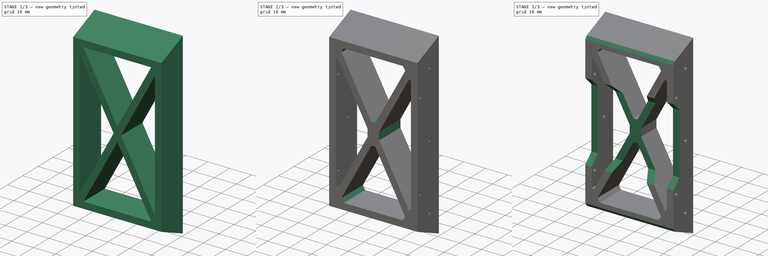
[diagram: build sequence overview — one tinted view per stage of 3, left to right]
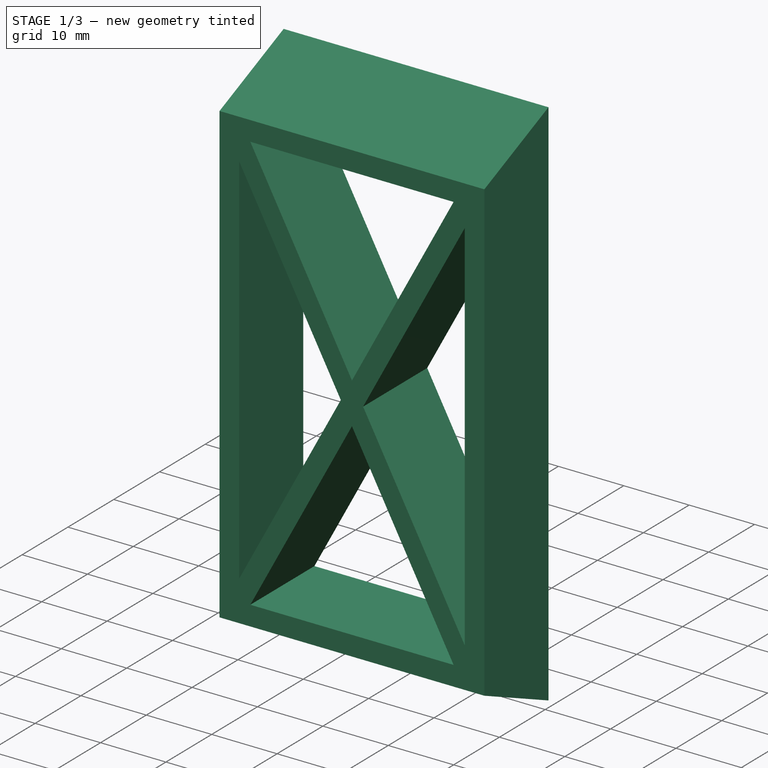
[diagram: stage 1 of 3 — iso view after this stage's code; geometry added in this stage tinted green]
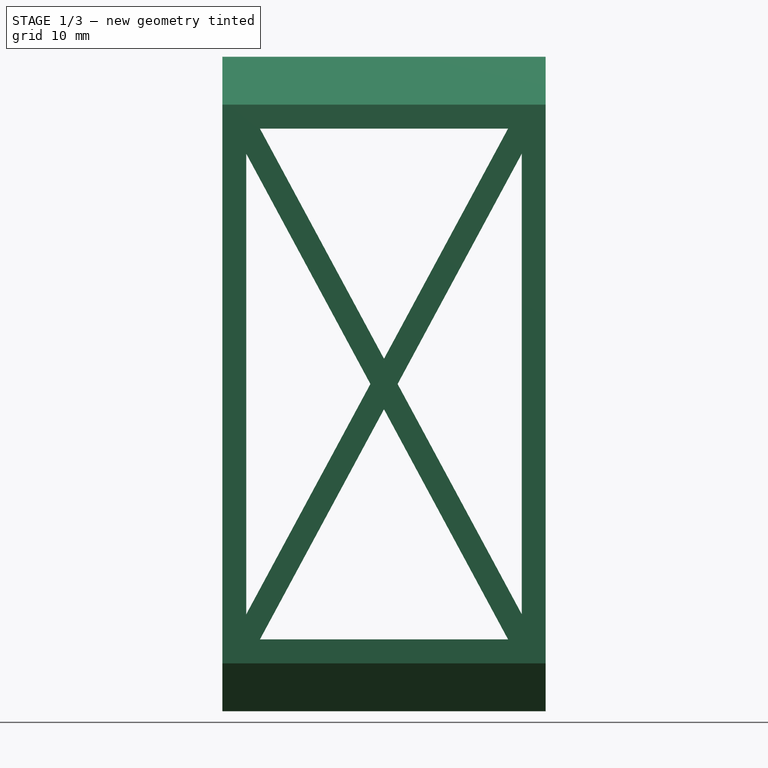
[diagram: stage 1 of 3 — front view after this stage's code; geometry added in this stage tinted green]
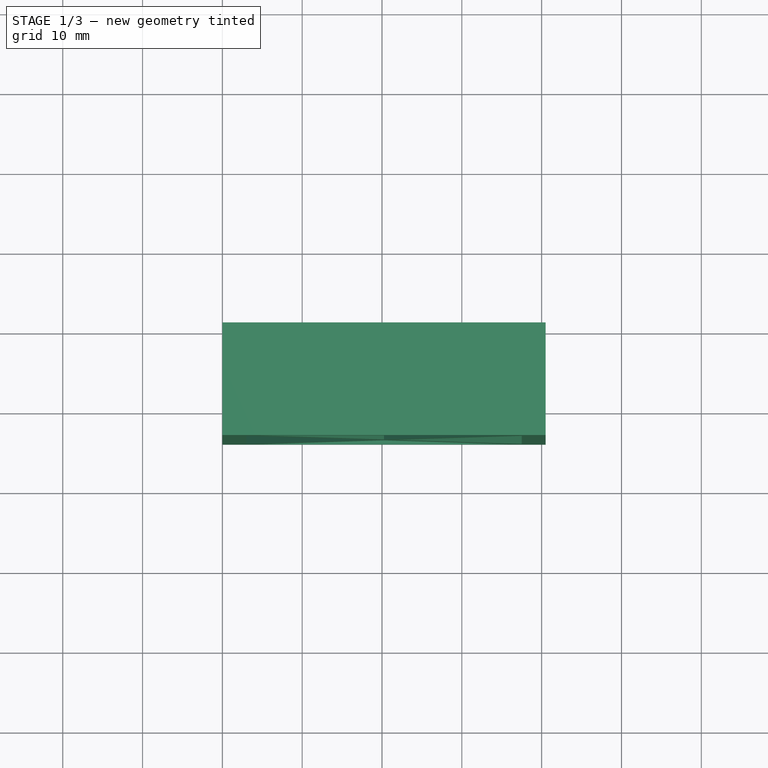
[diagram: stage 1 of 3 — top view after this stage's code; geometry added in this stage tinted green]
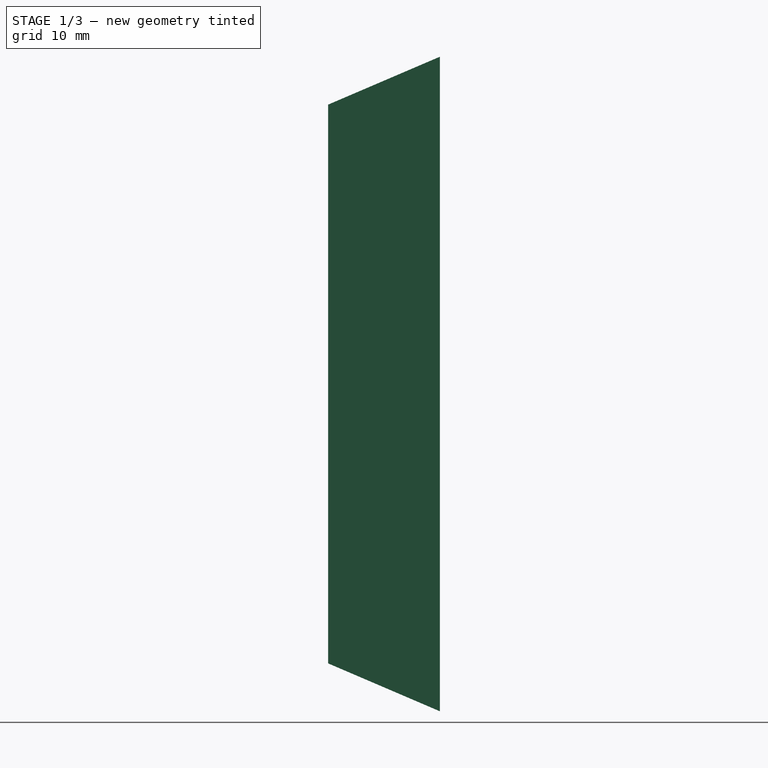
[diagram: stage 1 of 3 — right view after this stage's code; geometry added in this stage tinted green]
FCSTD DOCUMENT  (FreeCAD 0.21R33668 +26 (Git))
Label: Leg_frame_rear
License: All rights reserved
LicenseURL: https://en.wikipedia.org/wiki/All_rights_reserved
objects: Sketcher::SketchObject×5, PartDesign::Pocket×4, PartDesign::Chamfer×2, PartDesign::Pad×1, PartDesign::Body×1
note: 20 computed .brp shape members not serialized (recipe doc carries the construction recipe); baked Part::Feature solids carry a one-line shape summary decoded from their .brp

FEATURE [Sketcher::SketchObject] Sketch
  FullyConstrained = true
  MapMode = 5
  Placement = pos=(0,0,0) rot=(0.57735,0.57735,0.57735;2.0944rad)
  Support = -> [YZ_Plane]
  sketch-geometry (7):
    g0: LineSegment StartX=10 StartY=9 StartZ=0 EndX=10 EndY=91 EndZ=0
    g1: Circle CenterX=0 CenterY=100 CenterZ=0 NormalX=0 NormalY=0 NormalZ=1 AngleXU=0 Radius=10
    g2: Circle CenterX=0 CenterY=0 CenterZ=0 NormalX=0 NormalY=0 NormalZ=1 AngleXU=0 Radius=10
    g3: LineSegment StartX=-4 StartY=85 StartZ=0 EndX=-4 EndY=15 EndZ=0
    g4: LineSegment StartX=-4 StartY=15 StartZ=0 EndX=10 EndY=9 EndZ=0
    g5: LineSegment StartX=-4 StartY=85 StartZ=0 EndX=10 EndY=91 EndZ=0
    g6: LineSegment StartX=-4 StartY=50 StartZ=0 EndX=10 EndY=50 EndZ=0
  constraints (19):
    c: Vertical(g0)
    c: Equal(g1,g2)
    c: Diameter(g2) = 20
    c: DistanceY(g2,g1) = 100
    c: Coincident(g2,g-1)
    c: DistanceX(g3,g0) = 14
    c: Coincident(g4,g3)
    c: Coincident(g4,g0)
    c: Coincident(g5,g3)
    c: Coincident(g0,g5)
    c: Vertical(g3)
    c: DistanceY(g4,g4) = 6
    c: DistanceY(g3,g3) = 70
    c: DistanceY(g5,g5) = 6
    c: PointOnObject(g6,g3)
    c: PointOnObject(g6,g0)
    c: Symmetric(g3,g3,g6)
    c: Symmetric(g1,g2,g6)
    c: DistanceX(g2,g0) = 10
FEATURE [PartDesign::Pad] Pad
  Direction = (1,-2e-16,3e-16)
  Length = 40.5
  Length2 = 10
  Placement = pos=(0,0,0) rot=(0.57735,0.57735,0.57735;2.0944rad)
  Profile = -> Sketch
  ReferenceAxis = -> Sketch [N_Axis]
  Type = 0
FEATURE [Sketcher::SketchObject] Sketch001
  ExternalGeometry = -> [Pad]
  FullyConstrained = true
  MapMode = 5
  Placement = pos=(-1.8e-15,-4,9e-16) rot=(-0.57735,-0.57735,0.57735;4.18879rad)
  Support = -> [Pad]
  sketch-geometry (22):
    g0: LineSegment StartX=-82 StartY=37.5 StartZ=0 EndX=-18 EndY=37.5 EndZ=0
    g1: LineSegment StartX=-18 StartY=37.5 StartZ=0 EndX=-18 EndY=3 EndZ=0
    g2: LineSegment StartX=-18 StartY=3 StartZ=0 EndX=-82 EndY=3 EndZ=0
    g3: LineSegment StartX=-82 StartY=3 StartZ=0 EndX=-82 EndY=37.5 EndZ=0
    g4: LineSegment StartX=-82 StartY=37.5 StartZ=0 EndX=-18 EndY=3 EndZ=0
    g5: LineSegment StartX=-82 StartY=3 StartZ=0 EndX=-18 EndY=37.5 EndZ=0
    g6: LineSegment StartX=-78.8388 StartY=37.5 StartZ=0 EndX=-21.1612 EndY=37.5 EndZ=0
    g7: LineSegment StartX=-21.1612 StartY=37.5 StartZ=0 EndX=-50 EndY=21.9541 EndZ=0
    g8: LineSegment StartX=-78.8388 StartY=37.5 StartZ=0 EndX=-50 EndY=21.9541 EndZ=0
    g9: LineSegment StartX=-82 StartY=35.7959 StartZ=0 EndX=-53.1612 EndY=20.25 EndZ=0
    g10: LineSegment StartX=-53.1612 StartY=20.25 StartZ=0 EndX=-82 EndY=4.70406 EndZ=0
    g11: LineSegment StartX=-82 StartY=4.70406 StartZ=0 EndX=-82 EndY=35.7959 EndZ=0
    g12: LineSegment StartX=-21.1612 StartY=3 StartZ=0 EndX=-78.8388 EndY=3 EndZ=0
    g13: LineSegment StartX=-46.8388 StartY=20.25 StartZ=0 EndX=-18 EndY=35.7959 EndZ=0
    g14: LineSegment StartX=-18 StartY=35.7959 StartZ=0 EndX=-18 EndY=4.70406 EndZ=0
    g15: LineSegment StartX=-18 StartY=4.70406 StartZ=0 EndX=-46.8388 EndY=20.25 EndZ=0
    g16: GeomPoint X=-50 Y=20.25 Z=0
    g17: LineSegment StartX=-78.8388 StartY=3 StartZ=0 EndX=-50 EndY=18.5459 EndZ=0
    g18: LineSegment StartX=-50 StartY=18.5459 StartZ=0 EndX=-21.1612 EndY=3 EndZ=0
    g19: LineSegment StartX=-50 StartY=21.9541 StartZ=0 EndX=-50 EndY=18.5459 EndZ=0
    g20: LineSegment StartX=-53.1612 StartY=20.25 StartZ=0 EndX=-46.8388 EndY=20.25 EndZ=0
    g21: LineSegment StartX=-53.1612 StartY=20.25 StartZ=0 EndX=-51.7376 EndY=17.6092 EndZ=0
  constraints (58):
    c: Coincident(g0,g1)
    c: Coincident(g1,g2)
    c: Coincident(g2,g3)
    c: Coincident(g3,g0)
    c: Horizontal(g0)
    c: Horizontal(g2)
    c: Vertical(g3)
    c: DistanceY(g0,g-4) = 3
    c: DistanceY(g-6,g2) = 3
    c: DistanceX(g-4,g0) = 3
    c: DistanceX(g0,g-5) = 3
    c: Coincident(g4,g0)
    c: Coincident(g4,g1)
    c: Coincident(g5,g2)
    c: Coincident(g5,g0)
    c: PointOnObject(g6,g0)
    c: PointOnObject(g6,g0)
    c: Coincident(g7,g6)
    c: Coincident(g8,g6)
    c: Coincident(g8,g7)
    c: PointOnObject(g9,g3)
    c: Coincident(g10,g9)
    c: PointOnObject(g10,g3)
    c: Coincident(g11,g10)
    c: Coincident(g11,g9)
    c: PointOnObject(g12,g2)
    c: PointOnObject(g12,g2)
    c: Coincident(g14,g13)
    c: Coincident(g15,g14)
    c: Coincident(g15,g13)
    c: PointOnObject(g13,g1)
    c: PointOnObject(g14,g1)
    c: Vertical(g1)
    c: Parallel(g8,g9)
    c: Parallel(g15,g4)
    c: Tangent(g7,g10)
    c: Tangent(g15,g8)
    c: PointOnObject(g16,g5)
    c: PointOnObject(g16,g4)
    c: Coincident(g17,g12)
    c: Coincident(g18,g17)
    c: Coincident(g18,g12)
    c: Tangent(g18,g9)
    c: Parallel(g7,g5)
    c: Parallel(g5,g13)
    c: Parallel(g13,g17)
    c: Coincident(g19,g7)
    c: Coincident(g19,g17)
    c: Coincident(g20,g9)
    c: Coincident(g20,g13)
    c: Horizontal(g20)
    c: PointOnObject(g16,g20)
    c: PointOnObject(g16,g19)
    c: Vertical(g19)
    c: Coincident(g21,g9)
    c: PointOnObject(g21,g17)
    c: Perpendicular(g17,g21)
    c: Distance(g21) = 3
FEATURE [PartDesign::Pocket] Pocket
  BaseFeature = -> Pad
  Direction = (4e-16,1,-2e-16)
  Length = 5
  Length2 = 5
  Placement = pos=(0,0,0) rot=(0.57735,0.57735,0.57735;2.0944rad)
  Profile = -> Sketch001
  ReferenceAxis = -> Sketch001 [N_Axis]
  Type = 1
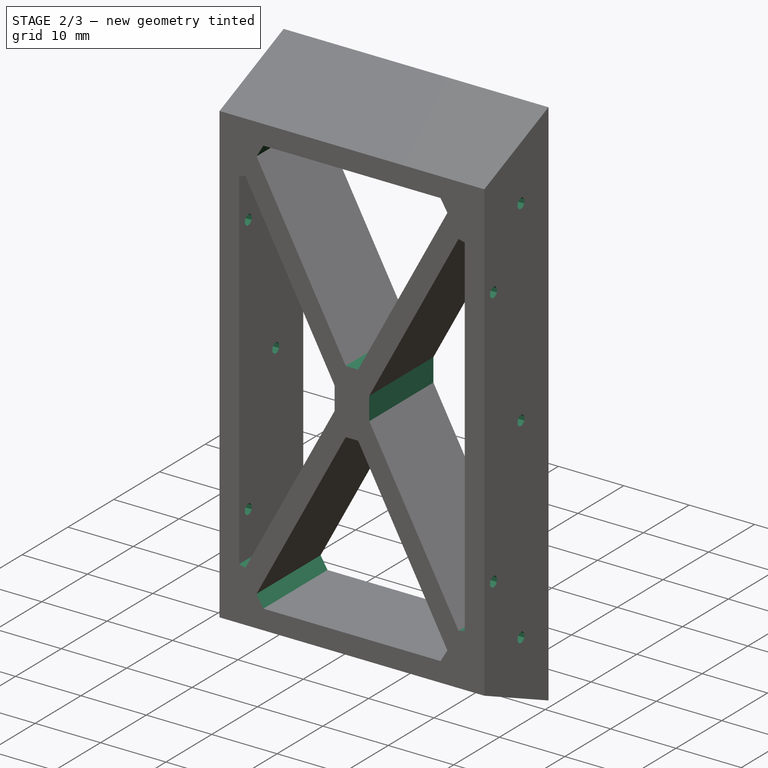
[diagram: stage 2 of 3 — iso view after this stage's code; geometry added in this stage tinted green]
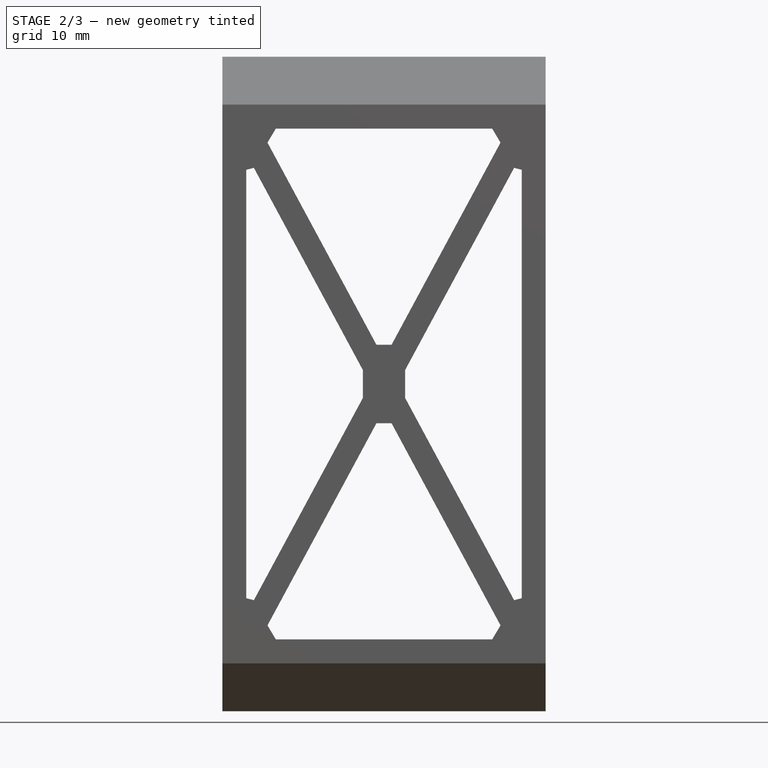
[diagram: stage 2 of 3 — front view after this stage's code; geometry added in this stage tinted green]
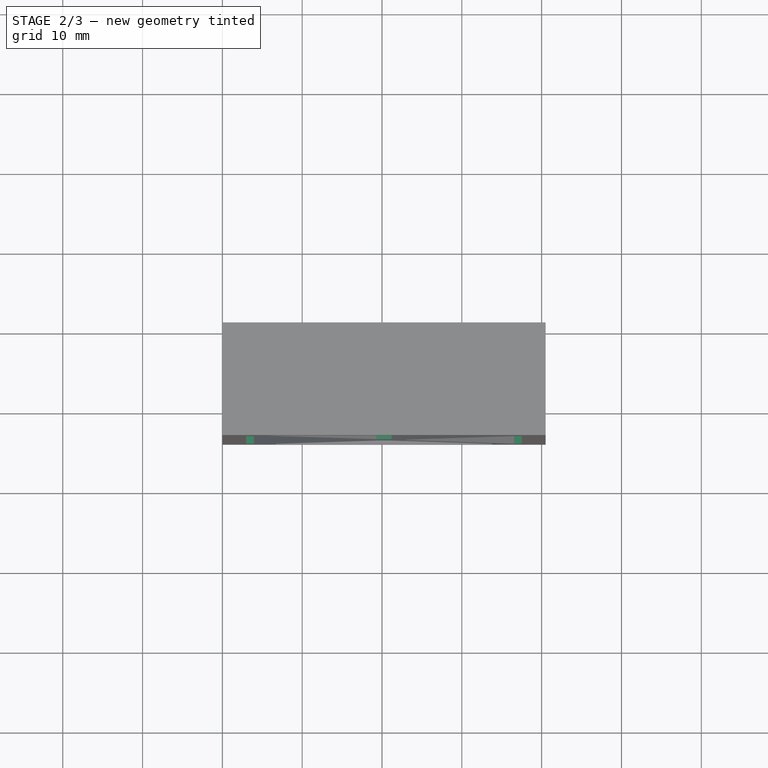
[diagram: stage 2 of 3 — top view after this stage's code; geometry added in this stage tinted green]
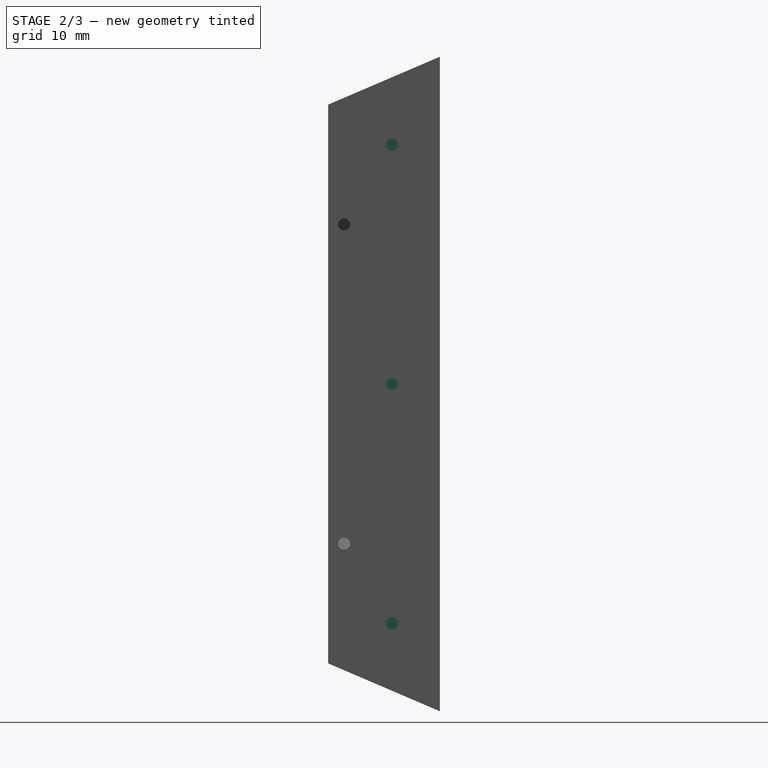
[diagram: stage 2 of 3 — right view after this stage's code; geometry added in this stage tinted green]
FEATURE [PartDesign::Chamfer] Chamfer
  Angle = 45
  Base = -> Pocket [Edge43,Edge46,Edge37,Edge39,Edge27,Edge40,Edge25,Edge28,Edge34,Edge31,Edge33,Edge45]
  BaseFeature = -> Pocket
  ChamferType = 0
  FlipDirection = false
  Placement = pos=(0,0,0) rot=(0.57735,0.57735,0.57735;2.0944rad)
  Size = 2
  Size2 = 1
  SupportTransform = false
  UseAllEdges = false
FEATURE [Sketcher::SketchObject] Sketch002
  ExternalGeometry = -> [Chamfer]
  FullyConstrained = true
  MapMode = 5
  Placement = pos=(40.5,-2.7e-14,1.35e-14) rot=(0.57735,0.57735,0.57735;2.0944rad)
  Support = -> [Chamfer]
  sketch-geometry (49):
    g0: LineSegment StartX=4 StartY=80 StartZ=0 EndX=4 EndY=50 EndZ=0
    g1: LineSegment StartX=4 StartY=50 StartZ=0 EndX=4 EndY=20 EndZ=0
    g2: LineSegment StartX=3.69385 StartY=80.7391 StartZ=0 EndX=3.2609 EndY=80.3061 EndZ=0
    g3: LineSegment StartX=3.2609 StartY=80.3061 StartZ=0 EndX=3.2609 EndY=79.6939 EndZ=0
    g4: LineSegment StartX=3.2609 StartY=79.6939 StartZ=0 EndX=3.69385 EndY=79.2609 EndZ=0
    g5: LineSegment StartX=3.69385 StartY=79.2609 StartZ=0 EndX=4.30615 EndY=79.2609 EndZ=0
    g6: LineSegment StartX=4.30615 StartY=79.2609 StartZ=0 EndX=4.7391 EndY=79.6939 EndZ=0
    g7: LineSegment StartX=4.7391 StartY=79.6939 StartZ=0 EndX=4.7391 EndY=80.3061 EndZ=0
    g8: LineSegment StartX=4.7391 StartY=80.3061 StartZ=0 EndX=4.30615 EndY=80.7391 EndZ=0
    g9: LineSegment StartX=4.30615 StartY=80.7391 StartZ=0 EndX=3.69385 EndY=80.7391 EndZ=0
    g10: Circle CenterX=4 CenterY=80 CenterZ=0 NormalX=0 NormalY=0 NormalZ=1 AngleXU=0 Radius=0.8
    g11: LineSegment StartX=3.69385 StartY=50.7391 StartZ=0 EndX=3.2609 EndY=50.3061 EndZ=0
    g12: LineSegment StartX=3.2609 StartY=50.3061 StartZ=0 EndX=3.2609 EndY=49.6939 EndZ=0
    g13: LineSegment StartX=3.2609 StartY=49.6939 StartZ=0 EndX=3.69385 EndY=49.2609 EndZ=0
    g14: LineSegment StartX=3.69385 StartY=49.2609 StartZ=0 EndX=4.30615 EndY=49.2609 EndZ=0
    g15: LineSegment StartX=4.30615 StartY=49.2609 StartZ=0 EndX=4.7391 EndY=49.6939 EndZ=0
    g16: LineSegment StartX=4.7391 StartY=49.6939 StartZ=0 EndX=4.7391 EndY=50.3061 EndZ=0
    g17: LineSegment StartX=4.7391 StartY=50.3061 StartZ=0 EndX=4.30615 EndY=50.7391 EndZ=0
    g18: LineSegment StartX=4.30615 StartY=50.7391 StartZ=0 EndX=3.69385 EndY=50.7391 EndZ=0
    g19: Circle CenterX=4 CenterY=50 CenterZ=0 NormalX=0 NormalY=0 NormalZ=1 AngleXU=0 Radius=0.8
    g20: LineSegment StartX=3.69385 StartY=20.7391 StartZ=0 EndX=3.2609 EndY=20.3061 EndZ=0
    g21: LineSegment StartX=3.2609 StartY=20.3061 StartZ=0 EndX=3.2609 EndY=19.6939 EndZ=0
    g22: LineSegment StartX=3.2609 StartY=19.6939 StartZ=0 EndX=3.69385 EndY=19.2609 EndZ=0
    g23: LineSegment StartX=3.69385 StartY=19.2609 StartZ=0 EndX=4.30615 EndY=19.2609 EndZ=0
    g24: LineSegment StartX=4.30615 StartY=19.2609 StartZ=0 EndX=4.7391 EndY=19.6939 EndZ=0
    g25: LineSegment StartX=4.7391 StartY=19.6939 StartZ=0 EndX=4.7391 EndY=20.3061 EndZ=0
    g26: LineSegment StartX=4.7391 StartY=20.3061 StartZ=0 EndX=4.30615 EndY=20.7391 EndZ=0
    g27: LineSegment StartX=4.30615 StartY=20.7391 StartZ=0 EndX=3.69385 EndY=20.7391 EndZ=0
    g28: Circle CenterX=4 CenterY=20 CenterZ=0 NormalX=0 NormalY=0 NormalZ=1 AngleXU=0 Radius=0.8
    g29: LineSegment StartX=4 StartY=50 StartZ=0 EndX=10 EndY=50 EndZ=0
    g30: LineSegment StartX=-1.69385 StartY=69.2609 StartZ=0 EndX=-1.2609 EndY=69.6939 EndZ=0
    g31: LineSegment StartX=-1.2609 StartY=69.6939 StartZ=0 EndX=-1.2609 EndY=70.3061 EndZ=0
    g32: LineSegment StartX=-1.2609 StartY=70.3061 StartZ=0 EndX=-1.69385 EndY=70.7391 EndZ=0
    g33: LineSegment StartX=-1.69385 StartY=70.7391 StartZ=0 EndX=-2.30615 EndY=70.7391 EndZ=0
    g34: LineSegment StartX=-2.30615 StartY=70.7391 StartZ=0 EndX=-2.7391 EndY=70.3061 EndZ=0
    g35: LineSegment StartX=-2.7391 StartY=70.3061 StartZ=0 EndX=-2.7391 EndY=69.6939 EndZ=0
    g36: LineSegment StartX=-2.7391 StartY=69.6939 StartZ=0 EndX=-2.30615 EndY=69.2609 EndZ=0
    g37: LineSegment StartX=-2.30615 StartY=69.2609 StartZ=0 EndX=-1.69385 EndY=69.2609 EndZ=0
    g38: Circle CenterX=-2 CenterY=70 CenterZ=0 NormalX=0 NormalY=0 NormalZ=1 AngleXU=0 Radius=0.8
    g39: LineSegment StartX=-1.69385 StartY=29.2609 StartZ=0 EndX=-1.2609 EndY=29.6939 EndZ=0
    g40: LineSegment StartX=-1.2609 StartY=29.6939 StartZ=0 EndX=-1.2609 EndY=30.3061 EndZ=0
    g41: LineSegment StartX=-1.2609 StartY=30.3061 StartZ=0 EndX=-1.69385 EndY=30.7391 EndZ=0
    g42: LineSegment StartX=-1.69385 StartY=30.7391 StartZ=0 EndX=-2.30615 EndY=30.7391 EndZ=0
    g43: LineSegment StartX=-2.30615 StartY=30.7391 StartZ=0 EndX=-2.7391 EndY=30.3061 EndZ=0
    g44: LineSegment StartX=-2.7391 StartY=30.3061 StartZ=0 EndX=-2.7391 EndY=29.6939 EndZ=0
    g45: LineSegment StartX=-2.7391 StartY=29.6939 StartZ=0 EndX=-2.30615 EndY=29.2609 EndZ=0
    g46: LineSegment StartX=-2.30615 StartY=29.2609 StartZ=0 EndX=-1.69385 EndY=29.2609 EndZ=0
    g47: Circle CenterX=-2 CenterY=30 CenterZ=0 NormalX=0 NormalY=0 NormalZ=1 AngleXU=0 Radius=0.8
    g48: LineSegment StartX=-2 StartY=70 StartZ=0 EndX=-2 EndY=30 EndZ=0
  constraints (113):
    c: Vertical(g0)
    c: Coincident(g1,g0)
    c: Vertical(g1)
    c: Equal(g1,g0)
    c: Coincident(g2,g3)
    c: Coincident(g3,g4)
    c: Coincident(g4,g5)
    c: Coincident(g5,g6)
    c: Coincident(g6,g7)
    c: Coincident(g7,g8)
    c: Coincident(g8,g9)
    c: Coincident(g9,g2)
    c: Equal(g2, g3-g9) x7
    c: PointOnObject(g2,g10)
    c: PointOnObject(g3,g10)
    c: PointOnObject(g4,g10)
    c: PointOnObject(g5,g10)
    c: PointOnObject(g6,g10)
    c: PointOnObject(g7,g10)
    c: PointOnObject(g8,g10)
    c: PointOnObject(g9,g10)
    c: Coincident(g10,g0)
    c: Coincident(g11,g12)
    c: Coincident(g12,g13)
    c: Coincident(g13,g14)
    c: Coincident(g14,g15)
    c: Coincident(g15,g16)
    c: Coincident(g16,g17)
    c: Coincident(g17,g18)
    c: Coincident(g18,g11)
    c: Equal(g11, g12-g18) x7
    c: PointOnObject(g11,g19)
    c: PointOnObject(g12,g19)
    c: PointOnObject(g13,g19)
    c: PointOnObject(g14,g19)
    c: PointOnObject(g15,g19)
    c: PointOnObject(g16,g19)
    c: PointOnObject(g17,g19)
    c: PointOnObject(g18,g19)
    c: Coincident(g19,g0)
    c: Coincident(g20,g21)
    c: Coincident(g21,g22)
    c: Coincident(g22,g23)
    c: Coincident(g23,g24)
    c: Coincident(g24,g25)
    c: Coincident(g25,g26)
    c: Coincident(g26,g27)
    c: Coincident(g27,g20)
    c: Equal(g20, g21-g27) x7
    c: PointOnObject(g20,g28)
    c: PointOnObject(g21,g28)
    c: PointOnObject(g22,g28)
    c: PointOnObject(g23,g28)
    c: PointOnObject(g24,g28)
    c: PointOnObject(g25,g28)
    c: PointOnObject(g26,g28)
    c: PointOnObject(g27,g28)
    c: Coincident(g28,g1)
    c: Horizontal(g27)
    c: Horizontal(g18)
    c: Horizontal(g9)
    c: Equal(g10,g19)
    c: Equal(g19,g28)
    c: Diameter(g28) = 1.6
    c: DistanceY(g0,g0) = 30
    c: Coincident(g29,g0)
    c: PointOnObject(g29,g-4)
    c: DistanceX(g29,g29) = 6
    c: Symmetric(g-4,g-4,g29)
    c: Coincident(g30,g31)
    c: Coincident(g31,g32)
    c: Coincident(g32,g33)
    c: Coincident(g33,g34)
    c: Coincident(g34,g35)
    c: Coincident(g35,g36)
    c: Coincident(g36,g37)
    c: Coincident(g37,g30)
    c: Equal(g30, g31-g37) x7
    c: PointOnObject(g30,g38)
    c: PointOnObject(g31,g38)
    c: PointOnObject(g32,g38)
    c: PointOnObject(g33,g38)
    c: PointOnObject(g34,g38)
    c: PointOnObject(g35,g38)
    c: PointOnObject(g36,g38)
    c: PointOnObject(g37,g38)
    c: Coincident(g39,g40)
    c: Coincident(g40,g41)
    c: Coincident(g41,g42)
    c: Coincident(g42,g43)
    c: Coincident(g43,g44)
    c: Coincident(g44,g45)
    c: Coincident(g45,g46)
    c: Coincident(g46,g39)
    c: Equal(g39, g40-g46) x7
    c: PointOnObject(g39,g47)
    c: PointOnObject(g40,g47)
    c: PointOnObject(g41,g47)
    c: PointOnObject(g42,g47)
    c: PointOnObject(g43,g47)
    c: PointOnObject(g44,g47)
    c: PointOnObject(g45,g47)
    c: PointOnObject(g46,g47)
    c: Horizontal(g42)
    c: Horizontal(g33)
    c: Equal(g47,g38)
    c: Equal(g38,g28)
    c: Coincident(g48,g38)
    c: Coincident(g48,g47)
    c: Vertical(g48)
    c: DistanceX(g-3,g47) = 2
    c: DistanceY(g38,g0) = 10
    c: DistanceY(g1,g47) = 10
FEATURE [PartDesign::Pocket] Pocket001
  BaseFeature = -> Chamfer
  Direction = (-1,9e-16,-6e-16)
  Length = 0
  Length2 = 5
  Placement = pos=(0,0,0) rot=(0.57735,0.57735,0.57735;2.0944rad)
  Profile = -> Sketch002
  ReferenceAxis = -> Sketch002 [N_Axis]
  Type = 3
  UpToFace = -> Chamfer [Face2]
FEATURE [Sketcher::SketchObject] Sketch003
  AttachmentOffset = pos=(0,0,0) rot=(0,0,1;3.14159rad)
  ExternalGeometry = -> [Chamfer]
  FullyConstrained = true
  MapMode = 5
  Placement = pos=(0,0,0) rot=(-0.57735,-0.57735,-0.57735;4.18879rad)
  Support = -> [Pocket001]
  expr: Constraints[140] = Sketch002.Constraints[140]
  expr: Constraints[141] = Sketch002.Constraints[141]
  expr: Constraints[142] = Sketch002.Constraints[142]
  expr: Constraints[81] = Sketch002.Constraints[81]
  expr: Constraints[82] = Sketch002.Constraints[82]
  expr: Constraints[85] = Sketch002.Constraints[85]
  sketch-geometry (49):
    g0: LineSegment StartX=4 StartY=80 StartZ=0 EndX=4 EndY=50 EndZ=0
    g1: LineSegment StartX=4 StartY=50 StartZ=0 EndX=4 EndY=20 EndZ=0
    g2: LineSegment StartX=3.69385 StartY=80.7391 StartZ=0 EndX=3.2609 EndY=80.3061 EndZ=0
    g3: LineSegment StartX=3.2609 StartY=80.3061 StartZ=0 EndX=3.2609 EndY=79.6939 EndZ=0
    g4: LineSegment StartX=3.2609 StartY=79.6939 StartZ=0 EndX=3.69385 EndY=79.2609 EndZ=0
    g5: LineSegment StartX=3.69385 StartY=79.2609 StartZ=0 EndX=4.30615 EndY=79.2609 EndZ=0
    g6: LineSegment StartX=4.30615 StartY=79.2609 StartZ=0 EndX=4.7391 EndY=79.6939 EndZ=0
    g7: LineSegment StartX=4.7391 StartY=79.6939 StartZ=0 EndX=4.7391 EndY=80.3061 EndZ=0
    g8: LineSegment StartX=4.7391 StartY=80.3061 StartZ=0 EndX=4.30615 EndY=80.7391 EndZ=0
    g9: LineSegment StartX=4.30615 StartY=80.7391 StartZ=0 EndX=3.69385 EndY=80.7391 EndZ=0
    g10: Circle CenterX=4 CenterY=80 CenterZ=0 NormalX=0 NormalY=0 NormalZ=1 AngleXU=0 Radius=0.8
    g11: LineSegment StartX=3.69385 StartY=50.7391 StartZ=0 EndX=3.2609 EndY=50.3061 EndZ=0
    g12: LineSegment StartX=3.2609 StartY=50.3061 StartZ=0 EndX=3.2609 EndY=49.6939 EndZ=0
    g13: LineSegment StartX=3.2609 StartY=49.6939 StartZ=0 EndX=3.69385 EndY=49.2609 EndZ=0
    g14: LineSegment StartX=3.69385 StartY=49.2609 StartZ=0 EndX=4.30615 EndY=49.2609 EndZ=0
    g15: LineSegment StartX=4.30615 StartY=49.2609 StartZ=0 EndX=4.7391 EndY=49.6939 EndZ=0
    g16: LineSegment StartX=4.7391 StartY=49.6939 StartZ=0 EndX=4.7391 EndY=50.3061 EndZ=0
    g17: LineSegment StartX=4.7391 StartY=50.3061 StartZ=0 EndX=4.30615 EndY=50.7391 EndZ=0
    g18: LineSegment StartX=4.30615 StartY=50.7391 StartZ=0 EndX=3.69385 EndY=50.7391 EndZ=0
    g19: Circle CenterX=4 CenterY=50 CenterZ=0 NormalX=0 NormalY=0 NormalZ=1 AngleXU=0 Radius=0.8
    g20: LineSegment StartX=3.69385 StartY=20.7391 StartZ=0 EndX=3.2609 EndY=20.3061 EndZ=0
    g21: LineSegment StartX=3.2609 StartY=20.3061 StartZ=0 EndX=3.2609 EndY=19.6939 EndZ=0
    g22: LineSegment StartX=3.2609 StartY=19.6939 StartZ=0 EndX=3.69385 EndY=19.2609 EndZ=0
    g23: LineSegment StartX=3.69385 StartY=19.2609 StartZ=0 EndX=4.30615 EndY=19.2609 EndZ=0
    g24: LineSegment StartX=4.30615 StartY=19.2609 StartZ=0 EndX=4.7391 EndY=19.6939 EndZ=0
    g25: LineSegment StartX=4.7391 StartY=19.6939 StartZ=0 EndX=4.7391 EndY=20.3061 EndZ=0
    g26: LineSegment StartX=4.7391 StartY=20.3061 StartZ=0 EndX=4.30615 EndY=20.7391 EndZ=0
    g27: LineSegment StartX=4.30615 StartY=20.7391 StartZ=0 EndX=3.69385 EndY=20.7391 EndZ=0
    g28: Circle CenterX=4 CenterY=20 CenterZ=0 NormalX=0 NormalY=0 NormalZ=1 AngleXU=0 Radius=0.8
    g29: LineSegment StartX=4 StartY=50 StartZ=0 EndX=10 EndY=50 EndZ=0
    g30: LineSegment StartX=-1.69385 StartY=69.2609 StartZ=0 EndX=-1.2609 EndY=69.6939 EndZ=0
    g31: LineSegment StartX=-1.2609 StartY=69.6939 StartZ=0 EndX=-1.2609 EndY=70.3061 EndZ=0
    g32: LineSegment StartX=-1.2609 StartY=70.3061 StartZ=0 EndX=-1.69385 EndY=70.7391 EndZ=0
    g33: LineSegment StartX=-1.69385 StartY=70.7391 StartZ=0 EndX=-2.30615 EndY=70.7391 EndZ=0
    g34: LineSegment StartX=-2.30615 StartY=70.7391 StartZ=0 EndX=-2.7391 EndY=70.3061 EndZ=0
    g35: LineSegment StartX=-2.7391 StartY=70.3061 StartZ=0 EndX=-2.7391 EndY=69.6939 EndZ=0
    g36: LineSegment StartX=-2.7391 StartY=69.6939 StartZ=0 EndX=-2.30615 EndY=69.2609 EndZ=0
    g37: LineSegment StartX=-2.30615 StartY=69.2609 StartZ=0 EndX=-1.69385 EndY=69.2609 EndZ=0
    g38: Circle CenterX=-2 CenterY=70 CenterZ=0 NormalX=0 NormalY=0 NormalZ=1 AngleXU=0 Radius=0.8
    g39: LineSegment StartX=-1.69385 StartY=29.2609 StartZ=0 EndX=-1.2609 EndY=29.6939 EndZ=0
    g40: LineSegment StartX=-1.2609 StartY=29.6939 StartZ=0 EndX=-1.2609 EndY=30.3061 EndZ=0
    g41: LineSegment StartX=-1.2609 StartY=30.3061 StartZ=0 EndX=-1.69385 EndY=30.7391 EndZ=0
    g42: LineSegment StartX=-1.69385 StartY=30.7391 StartZ=0 EndX=-2.30615 EndY=30.7391 EndZ=0
    g43: LineSegment StartX=-2.30615 StartY=30.7391 StartZ=0 EndX=-2.7391 EndY=30.3061 EndZ=0
    g44: LineSegment StartX=-2.7391 StartY=30.3061 StartZ=0 EndX=-2.7391 EndY=29.6939 EndZ=0
    g45: LineSegment StartX=-2.7391 StartY=29.6939 StartZ=0 EndX=-2.30615 EndY=29.2609 EndZ=0
    g46: LineSegment StartX=-2.30615 StartY=29.2609 StartZ=0 EndX=-1.69385 EndY=29.2609 EndZ=0
    g47: Circle CenterX=-2 CenterY=30 CenterZ=0 NormalX=0 NormalY=0 NormalZ=1 AngleXU=0 Radius=0.8
    g48: LineSegment StartX=-2 StartY=70 StartZ=0 EndX=-2 EndY=30 EndZ=0
  constraints (113):
    c: Vertical(g0)
    c: Coincident(g1,g0)
    c: Vertical(g1)
    c: Equal(g1,g0)
    c: Coincident(g2,g3)
    c: Coincident(g3,g4)
    c: Coincident(g4,g5)
    c: Coincident(g5,g6)
    c: Coincident(g6,g7)
    c: Coincident(g7,g8)
    c: Coincident(g8,g9)
    c: Coincident(g9,g2)
    c: Equal(g2, g3-g9) x7
    c: PointOnObject(g2,g10)
    c: PointOnObject(g3,g10)
    c: PointOnObject(g4,g10)
    c: PointOnObject(g5,g10)
    c: PointOnObject(g6,g10)
    c: PointOnObject(g7,g10)
    c: PointOnObject(g8,g10)
    c: PointOnObject(g9,g10)
    c: Coincident(g10,g0)
    c: Coincident(g11,g12)
    c: Coincident(g12,g13)
    c: Coincident(g13,g14)
    c: Coincident(g14,g15)
    c: Coincident(g15,g16)
    c: Coincident(g16,g17)
    c: Coincident(g17,g18)
    c: Coincident(g18,g11)
    c: Equal(g11, g12-g18) x7
    c: PointOnObject(g11,g19)
    c: PointOnObject(g12,g19)
    c: PointOnObject(g13,g19)
    c: PointOnObject(g14,g19)
    c: PointOnObject(g15,g19)
    c: PointOnObject(g16,g19)
    c: PointOnObject(g17,g19)
    c: PointOnObject(g18,g19)
    c: Coincident(g19,g0)
    c: Coincident(g20,g21)
    c: Coincident(g21,g22)
    c: Coincident(g22,g23)
    c: Coincident(g23,g24)
    c: Coincident(g24,g25)
    c: Coincident(g25,g26)
    c: Coincident(g26,g27)
    c: Coincident(g27,g20)
    c: Equal(g20, g21-g27) x7
    c: PointOnObject(g20,g28)
    c: PointOnObject(g21,g28)
    c: PointOnObject(g22,g28)
    c: PointOnObject(g23,g28)
    c: PointOnObject(g24,g28)
    c: PointOnObject(g25,g28)
    c: PointOnObject(g26,g28)
    c: PointOnObject(g27,g28)
    c: Coincident(g28,g1)
    c: Horizontal(g27)
    c: Horizontal(g18)
    c: Horizontal(g9)
    c: Equal(g10,g19)
    c: Equal(g19,g28)
    c: Diameter(g28) = 1.6
    c: DistanceY(g0,g0) = 30
    c: Coincident(g29,g0)
    c: PointOnObject(g29,g-4)
    c: DistanceX(g29,g29) = 6
    c: Symmetric(g-4,g-4,g29)
    c: Coincident(g30,g31)
    c: Coincident(g31,g32)
    c: Coincident(g32,g33)
    c: Coincident(g33,g34)
    c: Coincident(g34,g35)
    c: Coincident(g35,g36)
    c: Coincident(g36,g37)
    c: Coincident(g37,g30)
    c: Equal(g30, g31-g37) x7
    c: PointOnObject(g30,g38)
    c: PointOnObject(g31,g38)
    c: PointOnObject(g32,g38)
    c: PointOnObject(g33,g38)
    c: PointOnObject(g34,g38)
    c: PointOnObject(g35,g38)
    c: PointOnObject(g36,g38)
    c: PointOnObject(g37,g38)
    c: Coincident(g39,g40)
    c: Coincident(g40,g41)
    c: Coincident(g41,g42)
    c: Coincident(g42,g43)
    c: Coincident(g43,g44)
    c: Coincident(g44,g45)
    c: Coincident(g45,g46)
    c: Coincident(g46,g39)
    c: Equal(g39, g40-g46) x7
    c: PointOnObject(g39,g47)
    c: PointOnObject(g40,g47)
    c: PointOnObject(g41,g47)
    c: PointOnObject(g42,g47)
    c: PointOnObject(g43,g47)
    c: PointOnObject(g44,g47)
    c: PointOnObject(g45,g47)
    c: PointOnObject(g46,g47)
    c: Horizontal(g42)
    c: Horizontal(g33)
    c: Equal(g47,g38)
    c: Equal(g38,g28)
    c: Coincident(g48,g38)
    c: Coincident(g48,g47)
    c: Vertical(g48)
    c: DistanceX(g-3,g47) = 2
    c: DistanceY(g38,g0) = 10
    c: DistanceY(g1,g47) = 10
FEATURE [PartDesign::Pocket] Pocket002
  BaseFeature = -> Pocket001
  Direction = (-1,8e-16,-4e-16)
  Length = 0
  Length2 = 5
  Placement = pos=(0,0,0) rot=(0.57735,0.57735,0.57735;2.0944rad)
  Profile = -> Sketch003
  ReferenceAxis = -> Sketch003 [N_Axis]
  Reversed = true
  Type = 3
  UpToFace = -> Pocket001 [Face24]
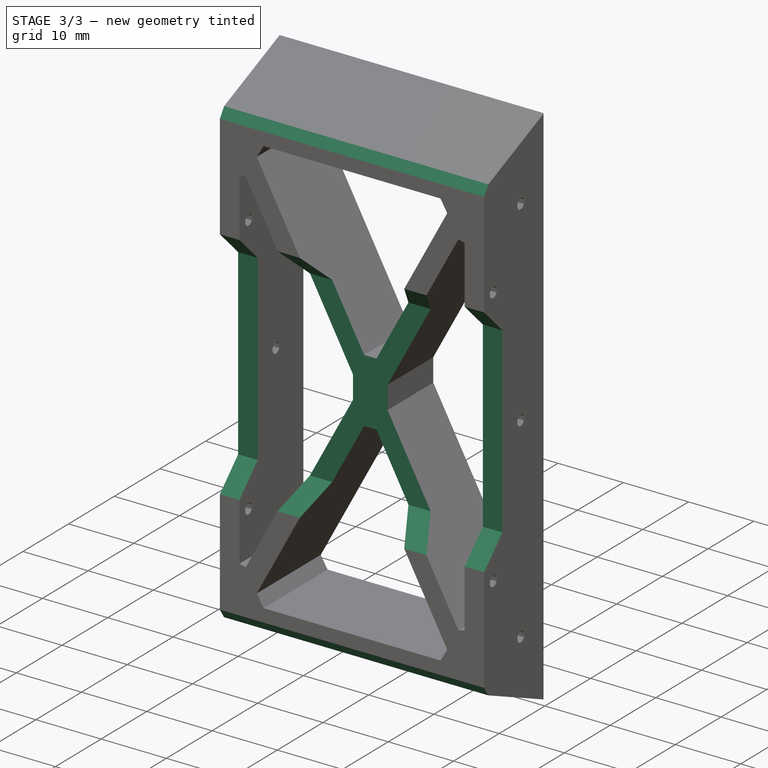
[diagram: stage 3 of 3 — iso view after this stage's code; geometry added in this stage tinted green]
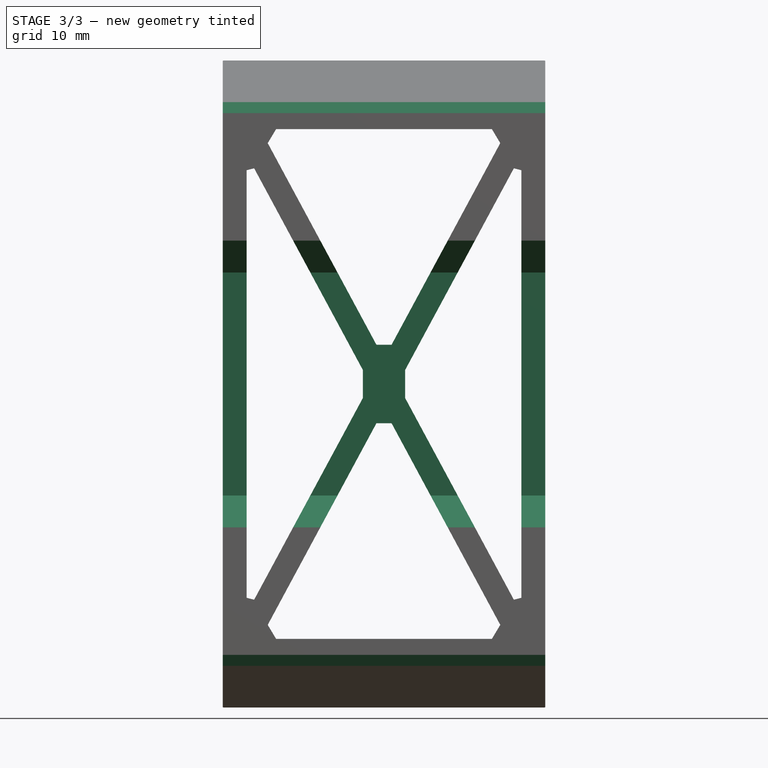
[diagram: stage 3 of 3 — front view after this stage's code; geometry added in this stage tinted green]
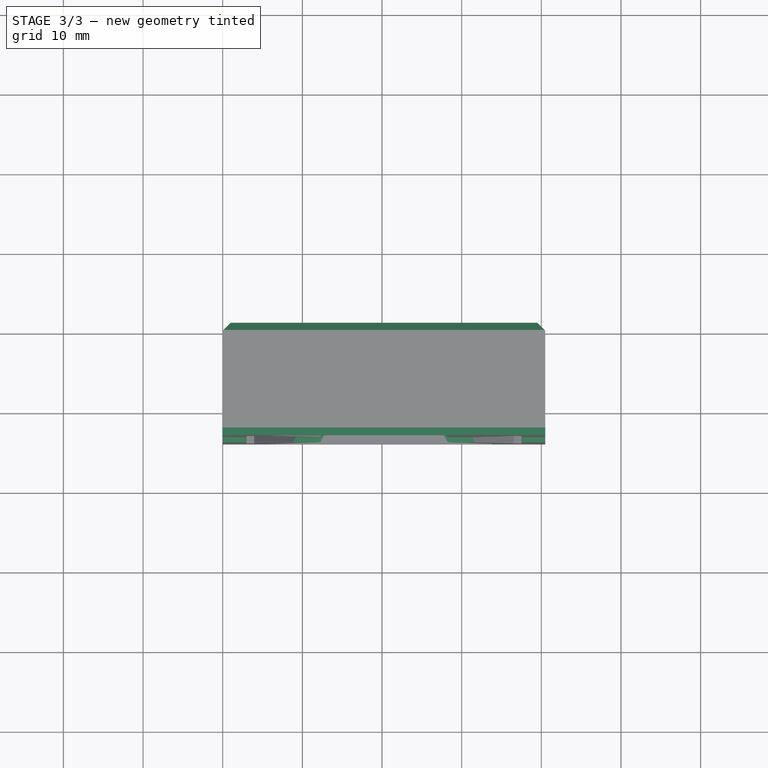
[diagram: stage 3 of 3 — top view after this stage's code; geometry added in this stage tinted green]
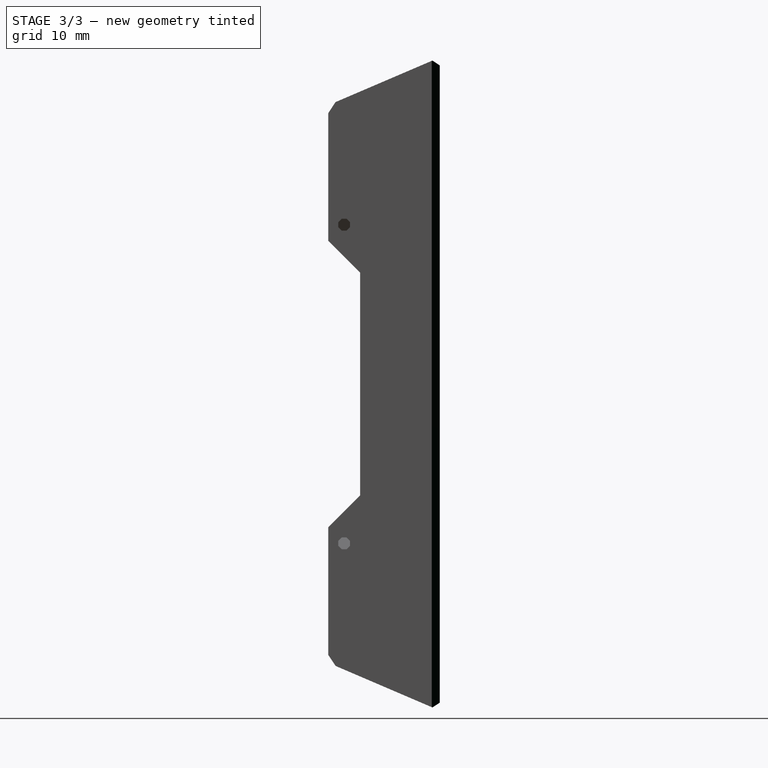
[diagram: stage 3 of 3 — right view after this stage's code; geometry added in this stage tinted green]
FEATURE [Sketcher::SketchObject] Sketch004
  ExternalGeometry = -> [Pocket002]
  FullyConstrained = true
  MapMode = 5
  Placement = pos=(-4.75e-14,0,0) rot=(0.57735,0.57735,-0.57735;4.18879rad)
  sketch-geometry (5):
    g0: LineSegment StartX=-4 StartY=-32 StartZ=0 EndX=1.29e-14 EndY=-36 EndZ=0
    g1: LineSegment StartX=-4 StartY=-68 StartZ=0 EndX=2.4e-14 EndY=-64 EndZ=0
    g2: LineSegment StartX=2.4e-14 StartY=-64 StartZ=0 EndX=1.33e-14 EndY=-36 EndZ=0
    g3: LineSegment StartX=-4 StartY=-32 StartZ=0 EndX=-4 EndY=-68 EndZ=0
    g4: LineSegment StartX=-4 StartY=-50 StartZ=0 EndX=0 EndY=-50 EndZ=0
  constraints (13):
    c: Coincident(g2,g1)
    c: Coincident(g2,g0)
    c: Coincident(g3,g0)
    c: Coincident(g3,g1)
    c: PointOnObject(g4,g3)
    c: PointOnObject(g4,g-2)
    c: Symmetric(g0,g1,g4)
    c: Symmetric(g0,g1,g4)
    c: Angle(g3,g0) = 0.785398
    c: DistanceX(g1,g1) = 4
    c: DistanceY(g3,g3) = 36
    c: Symmetric(g-3,g-3,g4)
    c: PointOnObject(g4,g-3)
FEATURE [PartDesign::Pocket] Pocket003
  BaseFeature = -> Pocket002
  Direction = (1,-9e-16,8e-16)
  Length = 5
  Length2 = 5
  Placement = pos=(0,0,0) rot=(0.57735,0.57735,0.57735;2.0944rad)
  Profile = -> Sketch004
  ReferenceAxis = -> Sketch004 [N_Axis]
  Type = 1
FEATURE [PartDesign::Chamfer] Chamfer001
  Angle = 45
  Base = -> Pocket003 [Edge98,Edge226,Edge100,Edge53,Edge4,Edge221]
  BaseFeature = -> Pocket003
  ChamferType = 0
  FlipDirection = false
  Placement = pos=(0,0,0) rot=(0.57735,0.57735,0.57735;2.0944rad)
  Size = 1
  Size2 = 1
  SupportTransform = false
  UseAllEdges = false
FEATURE [PartDesign::Body] Body
  Group = -> [Sketch,Pad,Sketch001,Pocket,Chamfer,Sketch002,Pocket001,Sketch003,Pocket002,Sketch004,Pocket003,Chamfer001]
  Origin = -> Origin
  Tip = -> Chamfer001
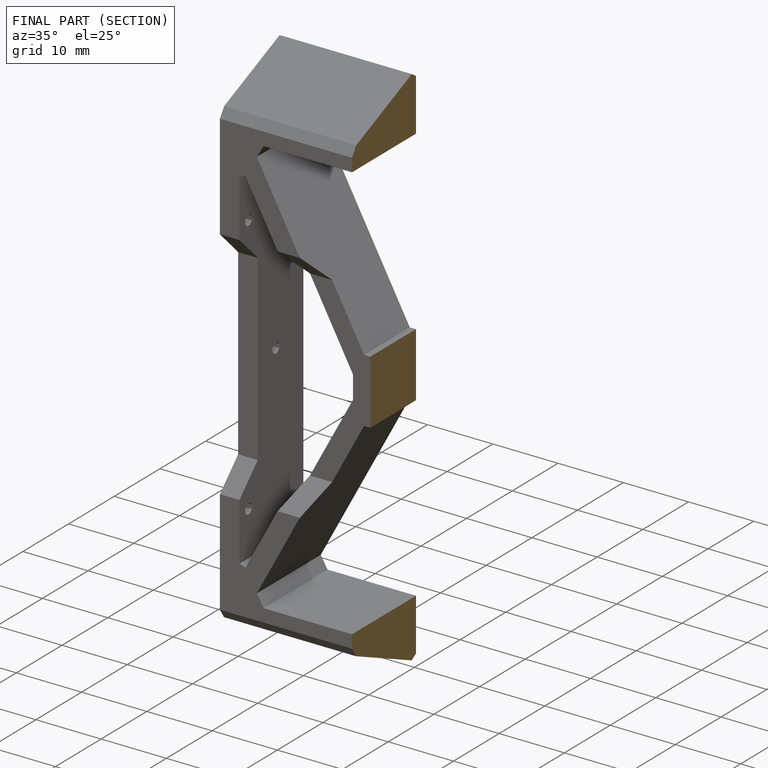
[diagram: finished part — half-section view (interior)]
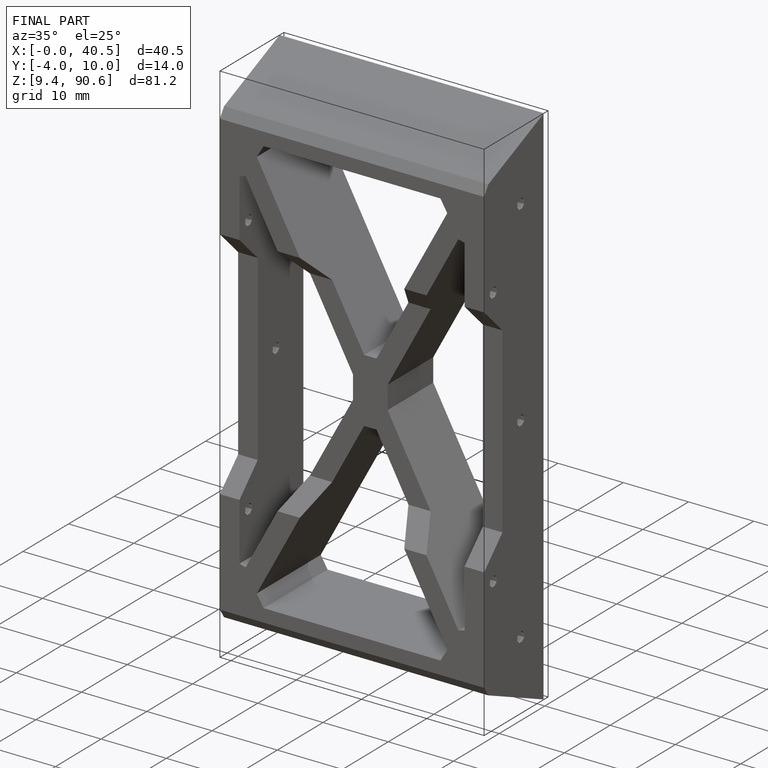
[diagram: finished part — iso view with bounding-box wireframe]
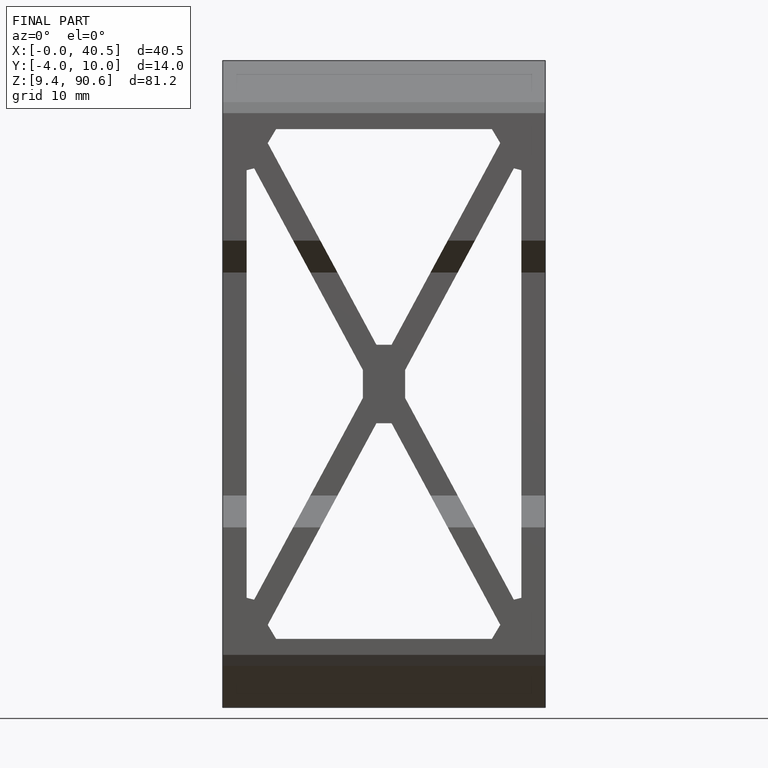
[diagram: finished part — front view with bounding-box wireframe]
